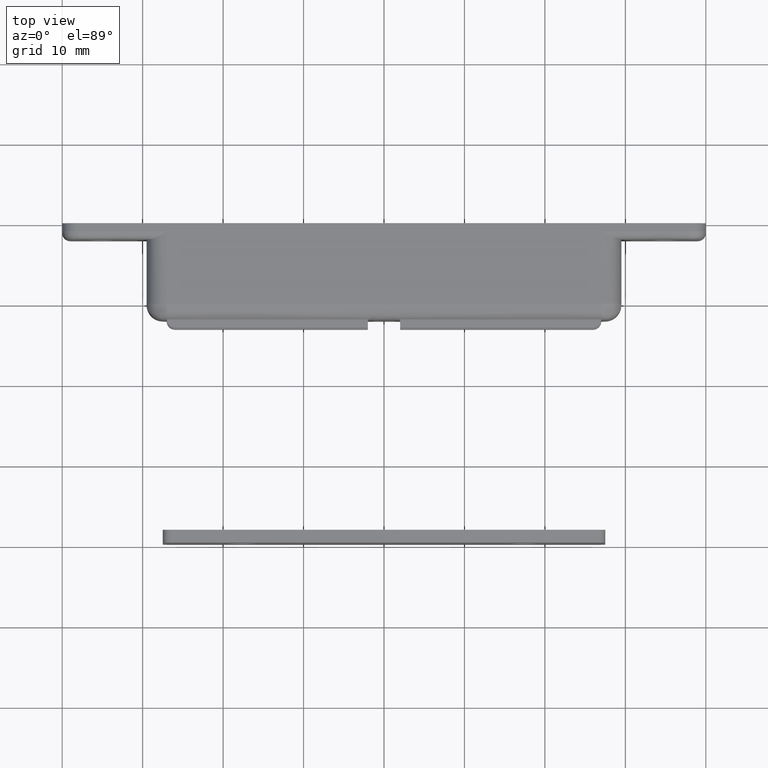
[diagram: clean part render]
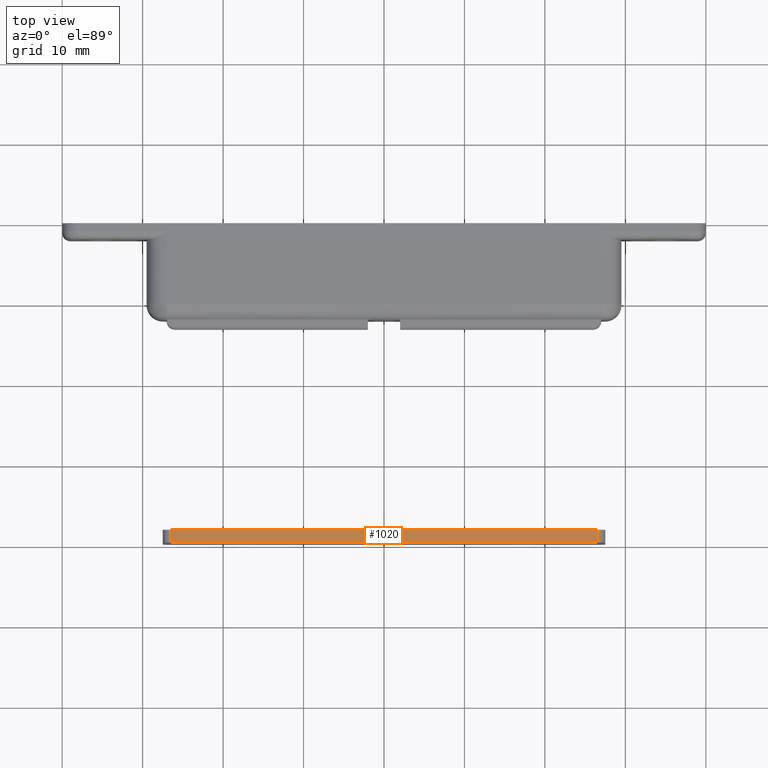
[diagram: same view with one face highlighted and labeled with its STEP entity id]
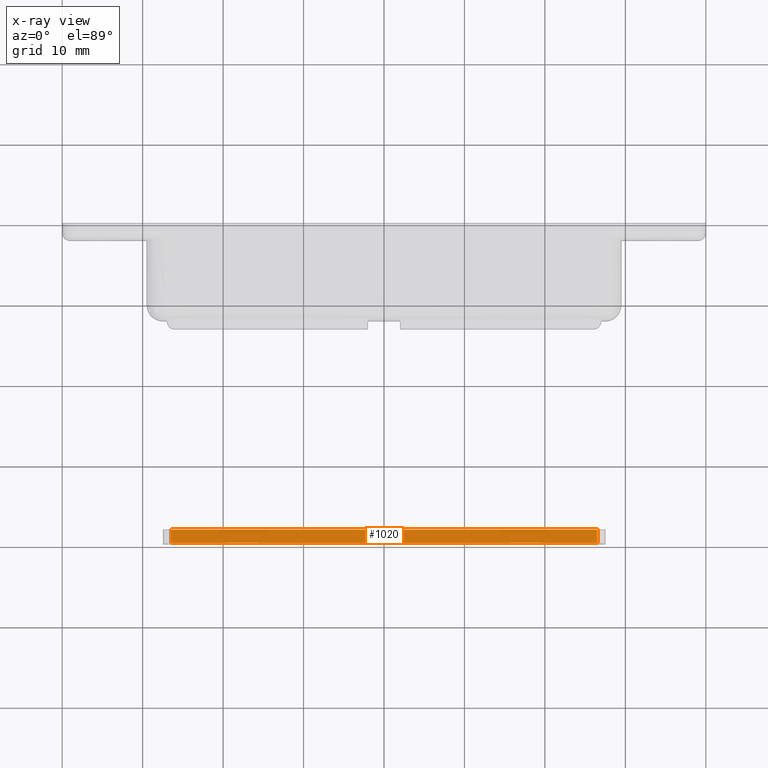
[diagram: x-ray of the same camera — body ghosted, the highlighted face saturated]
A machine part, top view. The second image highlights one B-rep face of the part: STEP entity #1020.
The next image is the same camera in x-ray: the body ghosted, the highlighted face saturated — about 0% of this face is hidden behind the body in this view.
In plain terms, the highlighted face is a freeform B-spline surface patch.
Its self-contained STEP definition (entity closure, byte-faithful):
#948=CARTESIAN_POINT('',(26.500000000000000,-14.710361412662120,8.0));
#949=VERTEX_POINT('',#948);
#970=CARTESIAN_POINT('',(26.500000000000000,-13.110361412662099,8.0));
#971=VERTEX_POINT('',#970);
#985=CARTESIAN_POINT('',(26.500000000000000,-13.110361412662099,8.0));
#986=CARTESIAN_POINT('',(26.500000000000000,-14.710361412662120,8.0));
#987=QUASI_UNIFORM_CURVE('',1,(#985,#986),.UNSPECIFIED.,.F.,.U.);
#988=EDGE_CURVE('',#971,#949,#987,.T.);
#993=CARTESIAN_POINT('',(29.147349899891100,-14.790281496091939,8.0));
#994=CARTESIAN_POINT('',(-29.147351373821781,-14.790281496091939,8.0));
#995=CARTESIAN_POINT('',(29.147349899891100,-13.030441128960680,8.0));
#996=CARTESIAN_POINT('',(-29.147351373821781,-13.030441128960680,8.0));
#997=B_SPLINE_SURFACE_WITH_KNOTS('',1,1,((#993,#995),(#994,#996)),.UNSPECIFIED.,.F.,.F.,.U.,(2,2),(2,2),(0.0,58.294701273712867),(0.041708289880306,0.958291814427823),.UNSPECIFIED.);
#998=CARTESIAN_POINT('',(-26.500000052359901,-14.710361412662120,8.0));
#999=VERTEX_POINT('',#998);
#1000=CARTESIAN_POINT('',(-26.500000052359901,-14.710361412662120,8.0));
#1001=CARTESIAN_POINT('',(26.500000000000000,-14.710361412662120,8.0));
#1002=QUASI_UNIFORM_CURVE('',1,(#1000,#1001),.UNSPECIFIED.,.F.,.U.);
#1003=EDGE_CURVE('',#999,#949,#1002,.T.);
#1004=ORIENTED_EDGE('',*,*,#1003,.T.);
#1005=ORIENTED_EDGE('',*,*,#988,.F.);
#1006=CARTESIAN_POINT('',(-26.500000052359901,-13.110361412662099,8.0));
#1007=VERTEX_POINT('',#1006);
#1008=CARTESIAN_POINT('',(-26.500000052359901,-13.110361412662099,8.0));
#1009=CARTESIAN_POINT('',(26.500000000000000,-13.110361412662099,8.0));
#1010=QUASI_UNIFORM_CURVE('',1,(#1008,#1009),.UNSPECIFIED.,.F.,.U.);
#1011=EDGE_CURVE('',#1007,#971,#1010,.T.);
#1012=ORIENTED_EDGE('',*,*,#1011,.F.);
#1013=CARTESIAN_POINT('',(-26.500000052359901,-13.110361412662099,8.0));
#1014=CARTESIAN_POINT('',(-26.500000052359901,-14.710361412662120,8.0));
#1015=QUASI_UNIFORM_CURVE('',1,(#1013,#1014),.UNSPECIFIED.,.F.,.U.);
#1016=EDGE_CURVE('',#1007,#999,#1015,.T.);
#1017=ORIENTED_EDGE('',*,*,#1016,.T.);
#1018=EDGE_LOOP('',(#1004,#1005,#1012,#1017));
#1019=FACE_OUTER_BOUND('',#1018,.T.);
#1020=ADVANCED_FACE('',(#1019),#997,.F.);